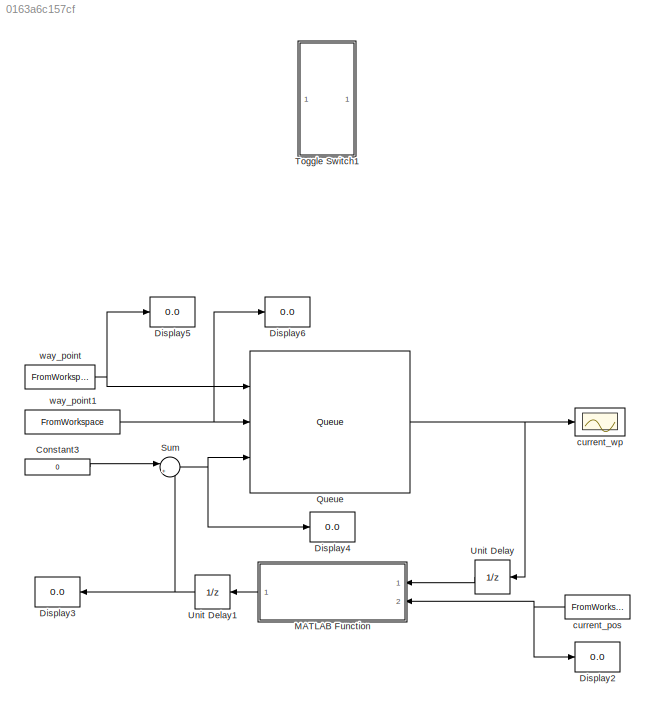
MODEL slx_0163a6c157cf
KIND model
CONFIG AbsTol = auto
CONFIG EnableMultiTasking = off
CONFIG FixedStep = 0.005
CONFIG MaxStep = auto
CONFIG MinStep = auto
CONFIG RelTol = 1e-3
CONFIG SampleTimeConstraint = Unconstrained
CONFIG Solver = FixedStepAuto
CONFIG SolverName = FixedStepAuto
CONFIG StartTime = 0.0
CONFIG StopTime = 50
BLOCK [Constant] Constant3
  Value = 0
BLOCK [Display] Display2
  Decimation = 1
  Ports = [1]
BLOCK [Display] Display3
  Decimation = 1
  Ports = [1]
BLOCK [Display] Display4
  Decimation = 1
  Ports = [1]
BLOCK [Display] Display5
  Decimation = 1
  Ports = [1]
BLOCK [Display] Display6
  Decimation = 1
  Ports = [1]
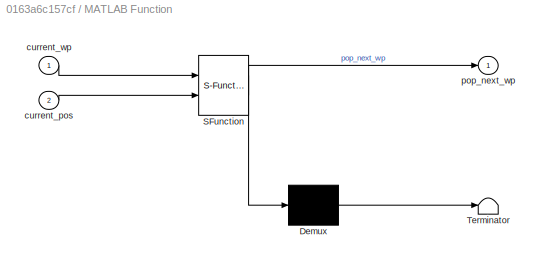
BLOCK [SubSystem] MATLAB Function
  ErrorFcn = Stateflow.Translate.translate
  PermitHierarchicalResolution = ExplicitOnly
  Ports = [2, 1]
  RequestExecContextInheritance = off
  SFBlockType = MATLAB Function
  TreatAsAtomicUnit = on
  Variant = off
BLOCK [Demux] MATLAB Function/ Demux 
  Outputs = 1
  Ports = [1, 1]
BLOCK [S-Function] MATLAB Function/ SFunction 
  EnableBusSupport = on
  FunctionName = sf_sfun
  PortCounts = [2 2]
  Ports = [2, 2]
  SFcnIsStateOwnerBlock = off
  SFunctionDeploymentMode = off
  Tag = Stateflow S-Function Waypoint_Generator 2
BLOCK [Terminator] MATLAB Function/ Terminator 
BLOCK [Inport] MATLAB Function/current_pos
  IconDisplay = Port number
  Port = 2
BLOCK [Inport] MATLAB Function/current_wp
  IconDisplay = Port number
BLOCK [Outport] MATLAB Function/pop_next_wp
  IconDisplay = Port number
BLOCK [Reference] Queue  REF=dspbuff3/Queue
  Ports = [3, 1]
  SourceBlock = dspbuff3/Queue
  SourceProductBaseCode = DS
  SourceProductName = DSP System Toolbox
  SourceType = Queue
BLOCK [Sum] Sum
  IconShape = round
  InputSameDT = off
  Inputs = |++
  OutDataTypeStr = Inherit: Inherit via internal rule
  Ports = [2, 1]
  SaturateOnIntegerOverflow = off
BLOCK [SubSystem] Toggle Switch1
  DialogController = hmiCreateDDGDialog
  IsWebBlock = on
  MaskHideContents = on
  Ports = []
  RequestExecContextInheritance = off
  Variant = off
BLOCK [UnitDelay] Unit Delay
  InputProcessing = Elements as channels (sample based)
  SampleTime = -1
BLOCK [UnitDelay] Unit Delay1
  InputProcessing = Elements as channels (sample based)
  SampleTime = 0.1
BLOCK [FromWorkspace] current_pos
  SampleTime = 0
  VariableName = pos_x
  ZeroCross = on
BLOCK [Scope] current_wp
  NumInputPorts = 1
  Ports = [1]
  ScopeSpecificationString = Simulink.scopes.TimeScopeBlockCfg('CurrentConfiguration', extmgr.ConfigurationSet(extmgr.Configuration('Core','General UI',true),extmgr.Configuration('Core','Source UI',true),extmgr.Configuration('Sources','WiredSimulink',true),extmgr.Configuration('Visuals','Time Domain',true,'SerializedDisplays',{struct('MinYLimReal','-1.25','MaxYLimReal','11.25','YLabelReal','','MinYLimMag','0.00000','MaxYLimMa...<+1342ch>
BLOCK [FromWorkspace] way_point
  Interpolate = off
  OutputAfterFinalValue = Holding final value
  SampleTime = 0
  VariableName = waypoint_x
  ZeroCross = on
BLOCK [FromWorkspace] way_point1
  Interpolate = off
  OutputAfterFinalValue = Holding final value
  SampleTime = 0
  VariableName = waypoint_x_push
  ZeroCross = on
LINE Constant3:1 -> Sum:1
LINE MATLAB Function:1 -> Unit Delay1:1
NET Queue:1 -> Unit Delay:1, current_wp:1
NET Sum:1 -> Display4:1, Queue:3
NET Unit Delay1:1 -> Display3:1, Sum:2
LINE Unit Delay:1 -> MATLAB Function:1
NET current_pos:1 -> Display2:1, MATLAB Function:2
NET way_point1:1 -> Display6:1, Queue:2
NET way_point:1 -> Display5:1, Queue:1
note: NET lines group one-source signal fan-out (src -> all destinations, sorted); 1:1 wires keep LINE
CHART MATLAB Function states=1 transitions=1
  STATE_LABEL 'eML_blk_kernel()'
  STATE_LABEL 'SCRIPT:\nfunction pop_next_wp = fcn(current_wp, current_pos)\n\nreached_waypoint_threshold = 0.25;                                             %metres, distance that confirms, wp has been reached\n\npop_next_wp = 0;\n\nif abs(current_pos - current_wp) <= reached_waypoint_threshold              %If we have reached the threshold, trigger rising edge. I.e send out next waypoint\n   pop_next_wp = 1;\nend\n'
